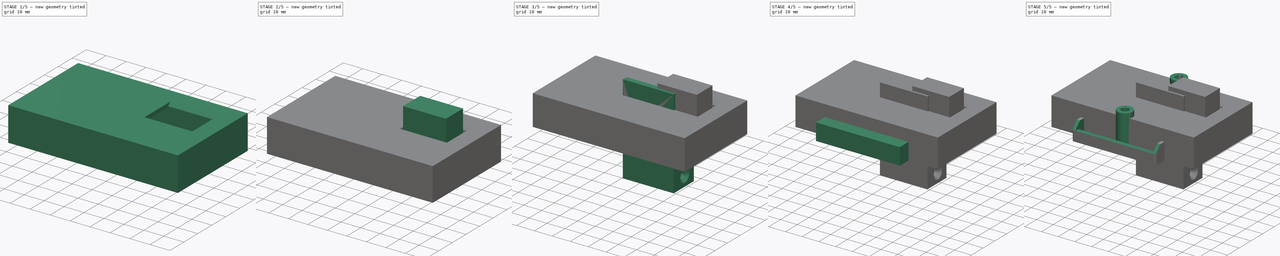
[diagram: build sequence overview — one tinted view per stage of 5, left to right]
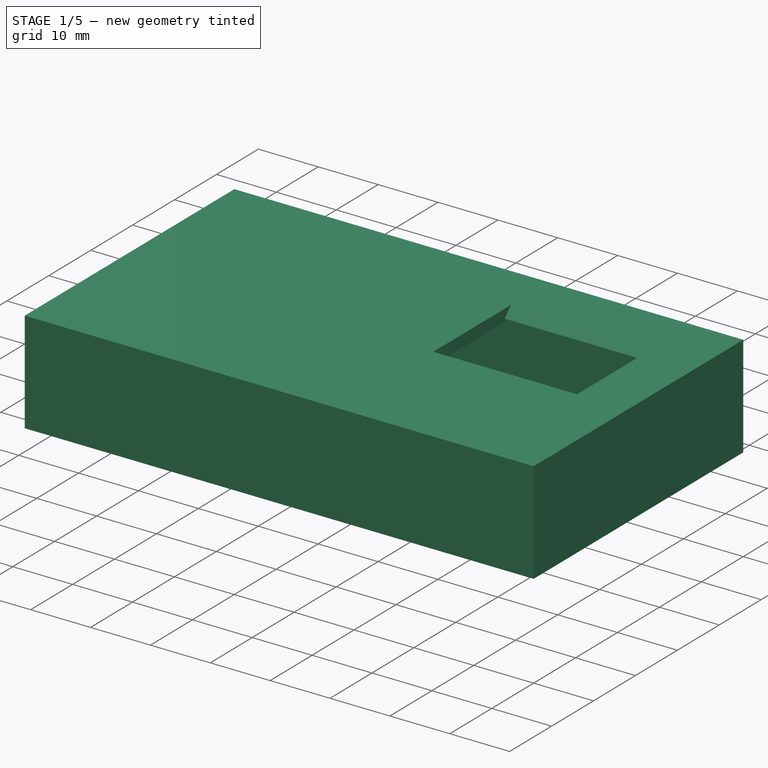
[diagram: stage 1 of 5 — iso view after this stage's code; geometry added in this stage tinted green]
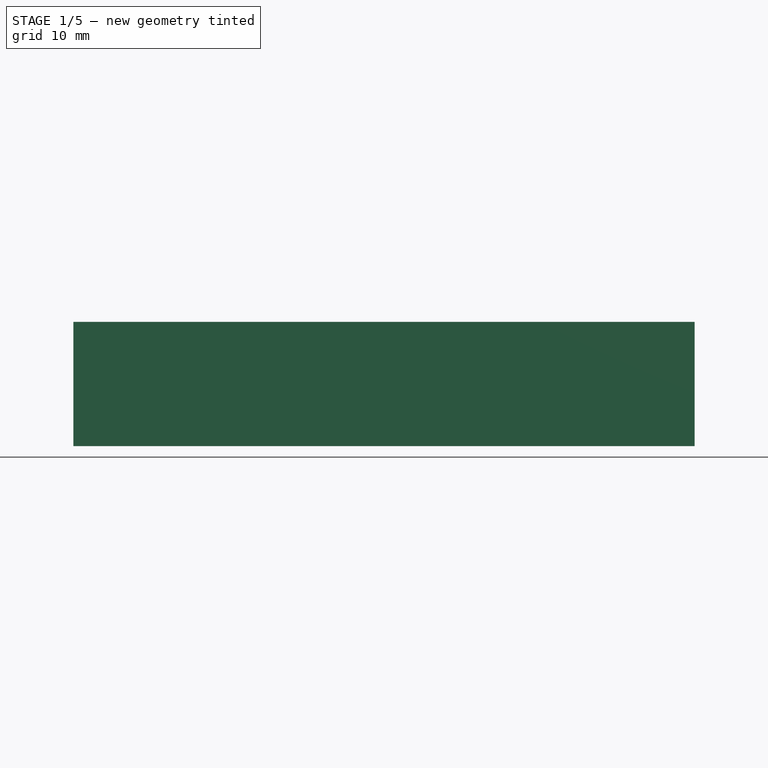
[diagram: stage 1 of 5 — front view after this stage's code; geometry added in this stage tinted green]
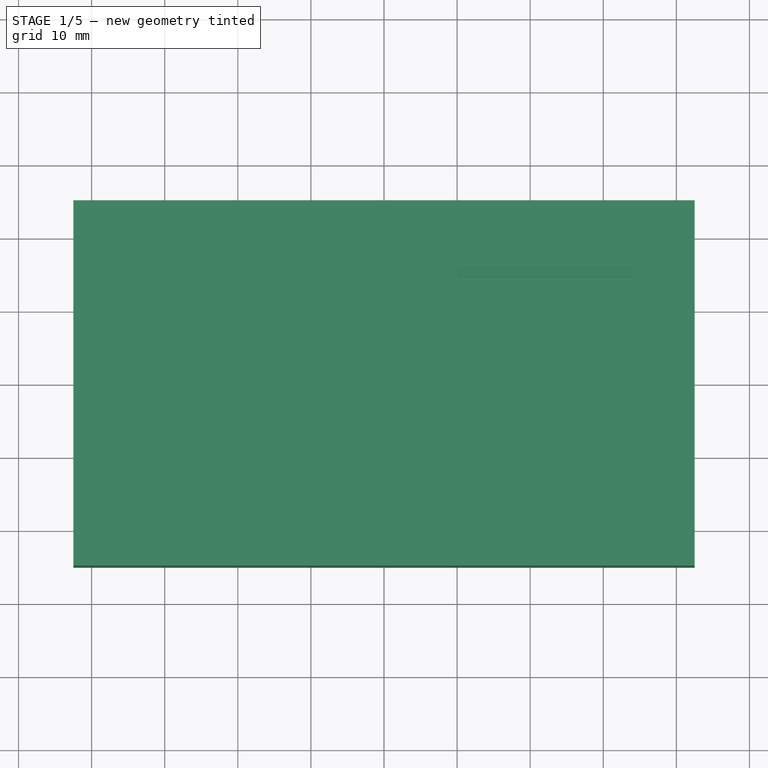
[diagram: stage 1 of 5 — top view after this stage's code; geometry added in this stage tinted green]
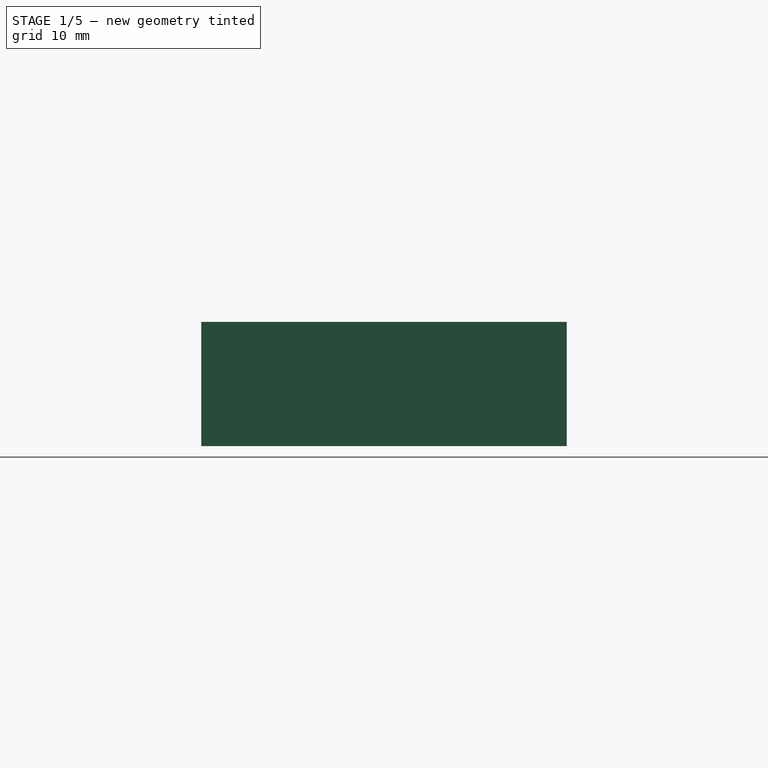
[diagram: stage 1 of 5 — right view after this stage's code; geometry added in this stage tinted green]
FCSTD DOCUMENT  (FreeCAD 0.21R33771 (Git))
Label: case
License: All rights reserved
LicenseURL: http://en.wikipedia.org/wiki/All_rights_reserved
objects: Sketcher::SketchObject×29, PartDesign::Pad×16, PartDesign::CoordinateSystem×13, PartDesign::Pocket×12, PartDesign::Mirrored×10, PartDesign::Body×6, PartDesign::SubtractiveCylinder×5, PartDesign::MultiTransform×4, App::Link×4, PartDesign::Chamfer×4, App::DocumentObjectGroup×3, Part::FeaturePython×2, App::FeaturePython×1, App::Part×1, PartDesign::Fillet×1, PartDesign::AdditiveCylinder×1
note: 142 computed .brp shape members not serialized (recipe doc carries the construction recipe); baked Part::Feature solids carry a one-line shape summary decoded from their .brp

FEATURE [PartDesign::CoordinateSystem] LCS_Origin
  AttacherType = Attacher::AttachEngine3D
  MapMode = 2
  Support = -> [X_Axis]
FEATURE [App::DocumentObjectGroup] Constraints
FEATURE [App::FeaturePython] Variables  # WARN: FeaturePython — macro-defined, semantics opaque (R4)
  Type = App::PropertyContainer
FEATURE [App::DocumentObjectGroup] Configurations
FEATURE [PartDesign::CoordinateSystem] LCS_0
  AttacherType = Attacher::AttachEngine3D
  MapMode = 2
  Support = -> [X_Axis001]
FEATURE [Sketcher::SketchObject] Sketch
  FullyConstrained = true
  MapMode = 5
  Support = -> [XY_Plane001]
  sketch-geometry (4):
    g0: LineSegment StartX=-40 StartY=22.5 StartZ=0 EndX=40 EndY=22.5 EndZ=0
    g1: LineSegment StartX=40 StartY=22.5 StartZ=0 EndX=40 EndY=-22.5 EndZ=0
    g2: LineSegment StartX=40 StartY=-22.5 StartZ=0 EndX=-40 EndY=-22.5 EndZ=0
    g3: LineSegment StartX=-40 StartY=-22.5 StartZ=0 EndX=-40 EndY=22.5 EndZ=0
  constraints (10):
    c: Coincident(g0,g1)
    c: Coincident(g1,g2)
    c: Coincident(g2,g3)
    c: Coincident(g3,g0)
    c: Horizontal(g2)
    c: Vertical(g1)
    c: DistanceX(g0,g0) = 80
    c: DistanceY(g3,g3) = 45
    c: Symmetric(g0,g2,g-1)
    c: Symmetric(g0,g0,g-2)
FEATURE [PartDesign::Pad] Pad
  Direction = (0,0,1)
  Length = 1.7
  Length2 = 10
  Profile = -> Sketch
  ReferenceAxis = -> Sketch [N_Axis]
  Type = 0
FEATURE [PartDesign::CoordinateSystem] LCS_003
  AttacherType = Attacher::AttachEngine3D
  MapMode = 2
  Support = -> [X_Axis004]
FEATURE [Sketcher::SketchObject] Sketch012
  FullyConstrained = true
  MapMode = 5
  Support = -> [XY_Plane004]
  sketch-geometry (4):
    g0: LineSegment StartX=-42.5 StartY=25 StartZ=0 EndX=42.5 EndY=25 EndZ=0
    g1: LineSegment StartX=42.5 StartY=25 StartZ=0 EndX=42.5 EndY=-25 EndZ=0
    g2: LineSegment StartX=42.5 StartY=-25 StartZ=0 EndX=-42.5 EndY=-25 EndZ=0
    g3: LineSegment StartX=-42.5 StartY=-25 StartZ=0 EndX=-42.5 EndY=25 EndZ=0
  constraints (10):
    c: Horizontal(g0)
    c: Vertical(g1)
    c: Coincident(g2,g1)
    c: Coincident(g3,g2)
    c: Coincident(g0,g3)
    c: DistanceX(g2,g2) = 85
    c: DistanceY(g3,g3) = 50
    c: Symmetric(g1,g2,g-2)
    c: Symmetric(g0,g2,g-1)
    c: Coincident(g1,g0)
FEATURE [PartDesign::CoordinateSystem] Local_CS006  label="TopMount"
  AttacherType = Attacher::AttachEngine3D
  AttachmentOffset = pos=(0,0,6.5) rot=(0,0,1;0rad)
  MapMode = 5
  Placement = pos=(0,0,6.5) rot=(0,0,1;0rad)
  Support = -> [LCS_002]
FEATURE [App::Link] Top001
  AssemblyType = Part::Link
  AttachedBy = #LCS_003
  AttachedTo = Base001#Local_CS006
  LinkPlacement = pos=(0,0,6.5) rot=(0,0,1;0rad)
  LinkedObject = -> Top
  Placement = pos=(0,0,6.5) rot=(0,0,1;0rad)
  SolverId = Asm4EE
  expr: Placement = Base001.Placement * Local_CS006.Placement * AttachmentOffset * LCS_003.Placement ^ -1
FEATURE [PartDesign::Pad] Pad009
  Direction = (0,0,1)
  Length = 17
  Length2 = 10
  Profile = -> Sketch012
  ReferenceAxis = -> Sketch012 [N_Axis]
  Type = 0
FEATURE [Sketcher::SketchObject] Sketch013
  FullyConstrained = false
  MapMode = 5
  Support = -> [XY_Plane004]
  sketch-geometry (4):
    g0: LineSegment StartX=-46.463 StartY=15 StartZ=0 EndX=-31.5928 EndY=15 EndZ=0
    g1: LineSegment StartX=-31.5928 StartY=15 StartZ=0 EndX=-31.5928 EndY=-16.25 EndZ=0
    g2: LineSegment StartX=-31.5928 StartY=-16.25 StartZ=0 EndX=-46.463 EndY=-16.25 EndZ=0
    g3: LineSegment StartX=-46.463 StartY=-16.25 StartZ=0 EndX=-46.463 EndY=15 EndZ=0
  constraints (9):
    c: Coincident(g0,g1)
    c: Coincident(g1,g2)
    c: Coincident(g2,g3)
    c: Horizontal(g0)
    c: Horizontal(g2)
    c: Vertical(g1)
    c: DistanceY(g-1,g0) = 15
    c: DistanceY(g2,g-1) = 16.25
    c: Coincident(g3,g0)
FEATURE [PartDesign::Pocket] Pocket002
  BaseFeature = -> Pad009
  Direction = (0,0,-1)
  Length = 11
  Length2 = 5
  Profile = -> Sketch013
  ReferenceAxis = -> Sketch013 [N_Axis]
  Reversed = true
  Type = 0
FEATURE [Sketcher::SketchObject] Sketch014
  FullyConstrained = false
  MapMode = 5
  Support = -> [XY_Plane004]
  sketch-geometry (8):
    g0: LineSegment StartX=-33.4749 StartY=23.25 StartZ=0 EndX=34 EndY=23.25 EndZ=0
    g1: LineSegment StartX=34 StartY=-23.25 StartZ=0 EndX=-33.4749 EndY=-23.25 EndZ=0
    g2: LineSegment StartX=-33.4749 StartY=-23.25 StartZ=0 EndX=-33.4749 EndY=23.25 EndZ=0
    g3: LineSegment StartX=34 StartY=-23.25 StartZ=0 EndX=34 EndY=-16 EndZ=0
    g4: LineSegment StartX=34 StartY=-16 StartZ=0 EndX=40.75 EndY=-16 EndZ=0
    g5: LineSegment StartX=40.75 StartY=-16 StartZ=0 EndX=40.75 EndY=16 EndZ=0
    g6: LineSegment StartX=40.75 StartY=16 StartZ=0 EndX=34 EndY=16 EndZ=0
    g7: LineSegment StartX=34 StartY=16 StartZ=0 EndX=34 EndY=23.25 EndZ=0
  constraints (22):
    c: Coincident(g1,g2)
    c: Coincident(g2,g0)
    c: Horizontal(g0)
    c: Horizontal(g1)
    c: Vertical(g2)
    c: Coincident(g3,g1)
    c: Coincident(g4,g3)
    c: Horizontal(g4)
    c: Coincident(g5,g4)
    c: Coincident(g6,g5)
    c: Horizontal(g6)
    c: Coincident(g7,g6)
    c: Coincident(g7,g0)
    c: DistanceY(g2,g2) = 46.5
    c: DistanceX(g4,g4) = 6.75
    c: Vertical(g1,g3)
    c: Vertical(g3,g6)
    c: Vertical(g6,g0)
    c: DistanceY(g7,g7) = 7.25
    c: DistanceY(g3,g3) = 7.25
    c: Symmetric(g5,g4,g-1)
    c: DistanceX(g-1,g3) = 34
FEATURE [PartDesign::Pocket] Pocket003
  BaseFeature = -> Pocket002
  Direction = (0,0,-1)
  Length = 15
  Length2 = 5
  Profile = -> Sketch014
  ReferenceAxis = -> Sketch014 [N_Axis]
  Reversed = true
  Type = 0
FEATURE [Sketcher::SketchObject] Sketch018
  FullyConstrained = true
  MapMode = 5
  Support = -> [XY_Plane004]
  sketch-geometry (4):
    g0: LineSegment StartX=-30.5 StartY=-4.5 StartZ=0 EndX=-9 EndY=-4.5 EndZ=0
    g1: LineSegment StartX=-9 StartY=-4.5 StartZ=0 EndX=-9 EndY=-21.5 EndZ=0
    g2: LineSegment StartX=-9 StartY=-21.5 StartZ=0 EndX=-30.5 EndY=-21.5 EndZ=0
    g3: LineSegment StartX=-30.5 StartY=-21.5 StartZ=0 EndX=-30.5 EndY=-4.5 EndZ=0
  constraints (12):
    c: Coincident(g0,g1)
    c: Coincident(g1,g2)
    c: Coincident(g2,g3)
    c: Coincident(g3,g0)
    c: Horizontal(g0)
    c: Horizontal(g2)
    c: Vertical(g1)
    c: Vertical(g3)
    c: DistanceX(g0,g-1) = 9
    c: DistanceX(g0,g0) = 21.5
    c: DistanceY(g1,g1) = 17
    c: DistanceY(g0,g-1) = 4.5
FEATURE [PartDesign::Pocket] Pocket007
  BaseFeature = -> Pocket003
  Direction = (0,0,-1)
  Length = 16
  Length2 = 5
  Profile = -> Sketch018
  ReferenceAxis = -> Sketch018 [N_Axis]
  Reversed = true
  Type = 0
FEATURE [PartDesign::SubtractiveCylinder] Cylinder002
  Angle = 360
  AttacherType = Attacher::AttachEngine3D
  AttachmentOffset = pos=(-37,19.5,0) rot=(0,0,1;0rad)
  BaseFeature = -> Pocket007
  FirstAngle = 0
  Height = 12
  MapMode = 5
  Placement = pos=(-37,19.5,0) rot=(0,0,1;0rad)
  Radius = 2.25
  SecondAngle = 0
  Support = -> [XY_Plane004]
  expr: Radius = 4.5 / 2
FEATURE [PartDesign::MultiTransform] MultiTransform004
  BaseFeature = -> Cylinder002
  Originals = -> [Cylinder002]
  Placement = pos=(-37,19.5,0) rot=(0,0,1;0rad)
  Transformations = -> [Mirrored009,Mirrored010]
FEATURE [PartDesign::Body] Mainboard
  Group = -> [LCS_0,Sketch,Pad,Sketch001,Pad001,Sketch002,Pad002,Sketch003,Pad003,Cylinder,MultiTransform,Mirrored,Mirrored001,Local_CS001,Local_CS003,Sketch034,Pad017,Local_CS009,Sketch035,Pad018]
  Origin = -> Origin001
  Tip = -> Pad018
FEATURE [Sketcher::SketchObject] Sketch036
  FullyConstrained = true
  MapMode = 5
  Support = -> [XY_Plane004]
FEATURE [Sketcher::SketchObject] Sketch037
  FullyConstrained = true
  MapMode = 5
  Support = -> [XY_Plane004]
  sketch-geometry (4):
    g0: LineSegment StartX=10 StartY=14.5 StartZ=0 EndX=34 EndY=14.5 EndZ=0
    g1: LineSegment StartX=34 StartY=14.5 StartZ=0 EndX=34 EndY=-2.5 EndZ=0
    g2: LineSegment StartX=34 StartY=-2.5 StartZ=0 EndX=10 EndY=-2.5 EndZ=0
    g3: LineSegment StartX=10 StartY=-2.5 StartZ=0 EndX=10 EndY=14.5 EndZ=0
  constraints (12):
    c: Coincident(g0,g1)
    c: Coincident(g1,g2)
    c: Coincident(g2,g3)
    c: Coincident(g3,g0)
    c: Horizontal(g0)
    c: Horizontal(g2)
    c: Vertical(g1)
    c: Vertical(g3)
    c: DistanceX(g0,g0) = 24
    c: DistanceY(g3,g3) = 17
    c: DistanceX(g-1,g0) = 10
    c: DistanceY(g2,g-1) = 2.5
FEATURE [PartDesign::Pocket] Pocket014
  BaseFeature = -> MultiTransform004
  Direction = (0,0,-1)
  Length = 5
  Length2 = 5
  Placement = pos=(-37,19.5,0) rot=(0,0,1;0rad)
  Profile = -> Sketch037
  ReferenceAxis = -> Sketch037 [N_Axis]
  Reversed = true
  Type = 1
FEATURE [PartDesign::Chamfer] Chamfer003
  Angle = 45
  Base = -> Pocket014 [Edge32]
  BaseFeature = -> Pocket014
  ChamferType = 0
  FlipDirection = false
  Placement = pos=(-37,19.5,0) rot=(0,0,1;0rad)
  Size = 1.5
  Size2 = 1
  SupportTransform = false
  UseAllEdges = false
FEATURE [PartDesign::Body] Top
  Group = -> [LCS_003,Sketch012,Pad009,Sketch013,Pocket002,Sketch014,Pocket003,Sketch018,Pocket007,Cylinder002,MultiTransform004,Mirrored009,Mirrored010,Sketch036,Sketch037,Pocket014,Chamfer003]
  Origin = -> Origin004
  Tip = -> Chamfer003
FEATURE [App::DocumentObjectGroup] Parts
  Group = -> [Mainboard,Base,Top,screw,SSR_Cover,Washer]
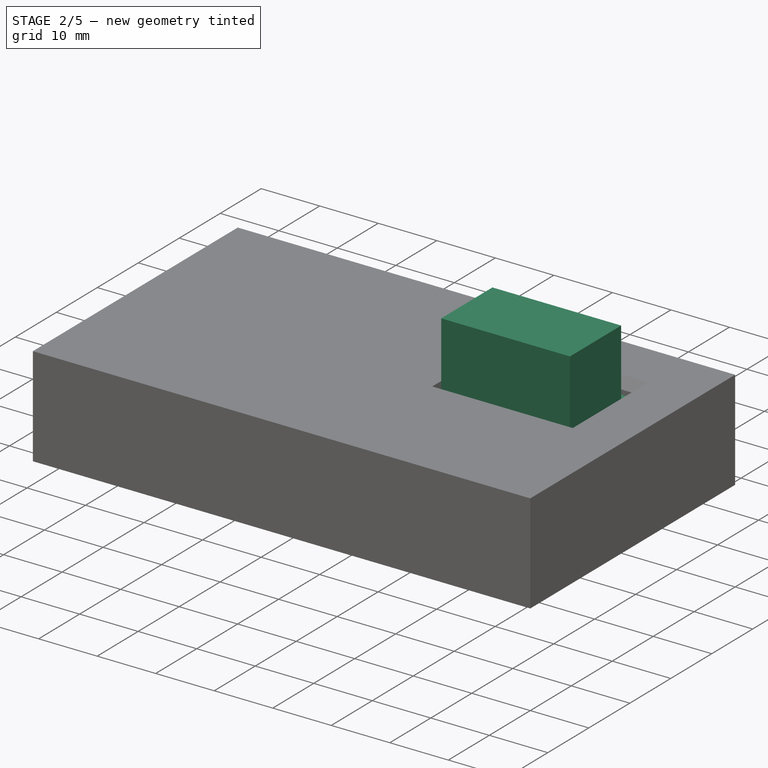
[diagram: stage 2 of 5 — iso view after this stage's code; geometry added in this stage tinted green]
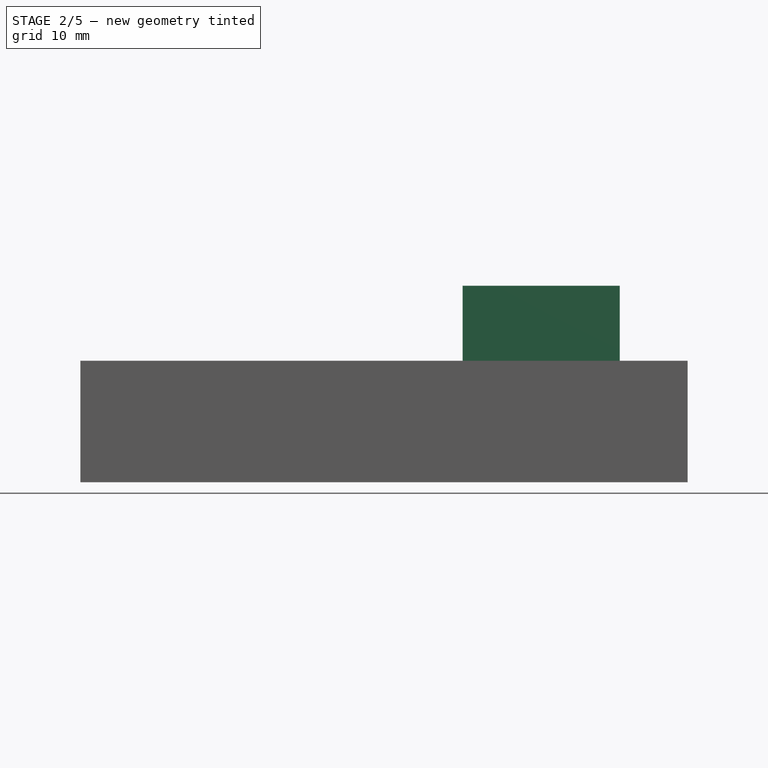
[diagram: stage 2 of 5 — front view after this stage's code; geometry added in this stage tinted green]
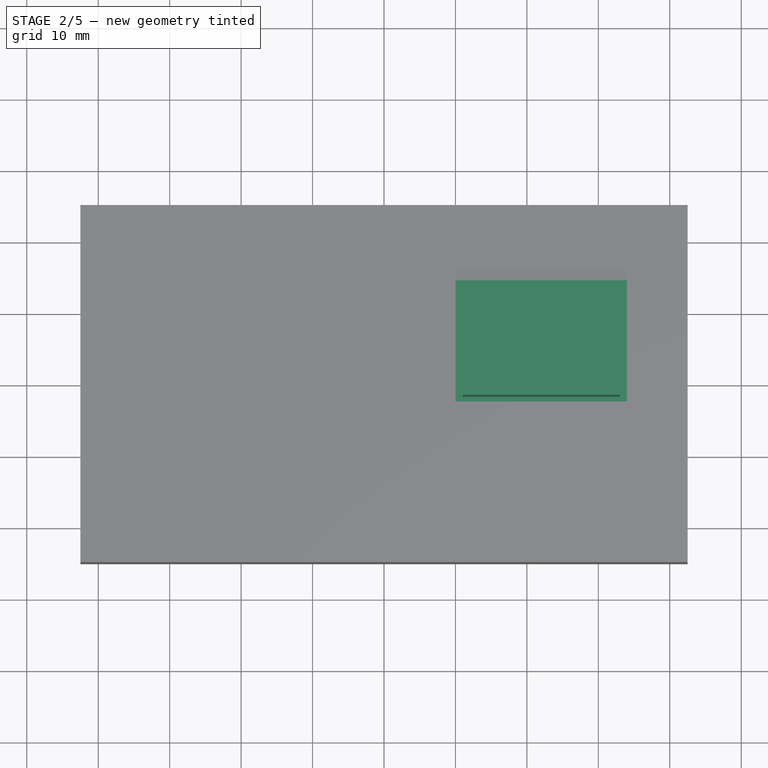
[diagram: stage 2 of 5 — top view after this stage's code; geometry added in this stage tinted green]
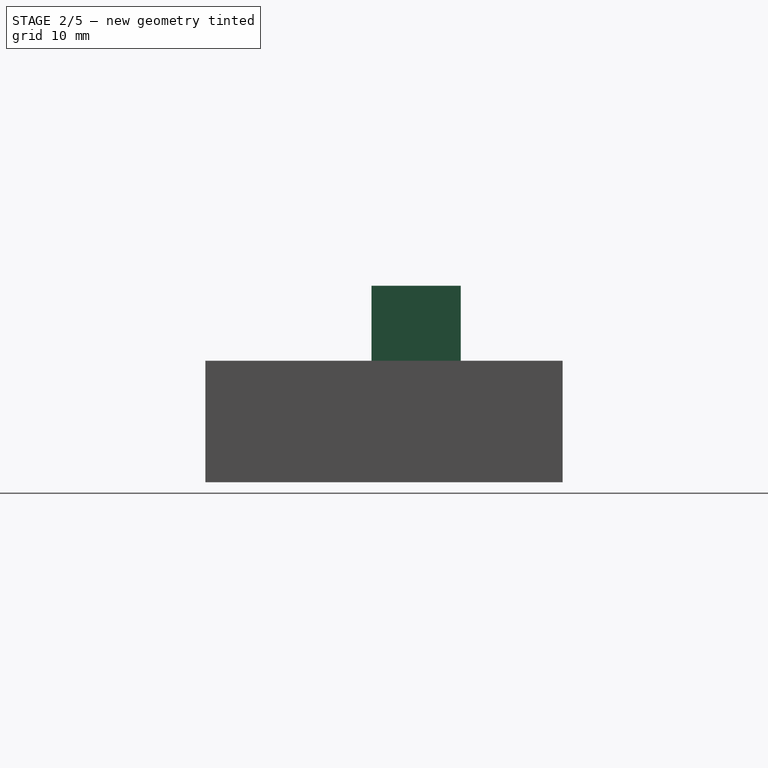
[diagram: stage 2 of 5 — right view after this stage's code; geometry added in this stage tinted green]
FEATURE [Sketcher::SketchObject] Sketch001
  FullyConstrained = true
  MapMode = 5
  Support = -> [XY_Plane001]
  expr: Constraints[11] = 45 / 2 - 8.4
  sketch-geometry (4):
    g0: LineSegment StartX=-40 StartY=14.1 StartZ=0 EndX=-33.5 EndY=14.1 EndZ=0
    g1: LineSegment StartX=-33.5 StartY=14.1 StartZ=0 EndX=-33.5 EndY=3.1 EndZ=0
    g2: LineSegment StartX=-33.5 StartY=3.1 StartZ=0 EndX=-40 EndY=3.1 EndZ=0
    g3: LineSegment StartX=-40 StartY=3.1 StartZ=0 EndX=-40 EndY=14.1 EndZ=0
  constraints (12):
    c: Coincident(g0,g1)
    c: Coincident(g1,g2)
    c: Coincident(g2,g3)
    c: Coincident(g3,g0)
    c: Horizontal(g0)
    c: Horizontal(g2)
    c: Vertical(g1)
    c: Vertical(g3)
    c: DistanceY(g1,g1) = 11
    c: DistanceX(g0,g0) = 6.5
    c: DistanceX(g0,g-1) = 40
    c: DistanceY(g-1,g0) = 14.1
FEATURE [PartDesign::Pad] Pad001
  BaseFeature = -> Pad
  Direction = (0,0,1)
  Length = 11.5
  Length2 = 10
  Profile = -> Sketch001
  ReferenceAxis = -> Sketch001 [N_Axis]
  Type = 0
FEATURE [Sketcher::SketchObject] Sketch002
  FullyConstrained = true
  MapMode = 5
  Support = -> [XY_Plane001]
  expr: Constraints[11] = 45 / 2 - 6.5
  sketch-geometry (4):
    g0: LineSegment StartX=-40 StartY=-1 StartZ=0 EndX=-33.5 EndY=-1 EndZ=0
    g1: LineSegment StartX=-33.5 StartY=-1 StartZ=0 EndX=-33.5 EndY=-16 EndZ=0
    g2: LineSegment StartX=-33.5 StartY=-16 StartZ=0 EndX=-40 EndY=-16 EndZ=0
    g3: LineSegment StartX=-40 StartY=-16 StartZ=0 EndX=-40 EndY=-1 EndZ=0
  constraints (12):
    c: Coincident(g0,g1)
    c: Coincident(g1,g2)
    c: Coincident(g2,g3)
    c: Coincident(g3,g0)
    c: Horizontal(g0)
    c: Horizontal(g2)
    c: Vertical(g1)
    c: Vertical(g3)
    c: DistanceX(g0,g0) = 6.5
    c: DistanceY(g3,g3) = 15
    c: DistanceX(g0,g-1) = 40
    c: DistanceY(g2,g-1) = 16
FEATURE [PartDesign::Pad] Pad002
  BaseFeature = -> Pad001
  Direction = (0,0,1)
  Length = 11.5
  Length2 = 10
  Profile = -> Sketch002
  ReferenceAxis = -> Sketch002 [N_Axis]
  Type = 0
FEATURE [Sketcher::SketchObject] Sketch003
  FullyConstrained = true
  MapMode = 5
  Support = -> [XY_Plane001]
  expr: Constraints[10] = 40 - 11
  expr: Constraints[11] = 45 / 2 - 2
  sketch-geometry (4):
    g0: LineSegment StartX=-29 StartY=-5.5 StartZ=0 EndX=-10.5 EndY=-5.5 EndZ=0
    g1: LineSegment StartX=-10.5 StartY=-5.5 StartZ=0 EndX=-10.5 EndY=-20.5 EndZ=0
    g2: LineSegment StartX=-10.5 StartY=-20.5 StartZ=0 EndX=-29 EndY=-20.5 EndZ=0
    g3: LineSegment StartX=-29 StartY=-20.5 StartZ=0 EndX=-29 EndY=-5.5 EndZ=0
  constraints (12):
    c: Coincident(g0,g1)
    c: Coincident(g1,g2)
    c: Coincident(g2,g3)
    c: Coincident(g3,g0)
    c: Horizontal(g0)
    c: Horizontal(g2)
    c: Vertical(g1)
    c: Vertical(g3)
    c: DistanceX(g0,g0) = 18.5
    c: DistanceY(g3,g3) = 15
    c: DistanceX(g2,g-1) = 29
    c: DistanceY(g2,g-1) = 20.5
FEATURE [PartDesign::Pad] Pad003
  BaseFeature = -> Pad002
  Direction = (0,0,1)
  Length = 16.8
  Length2 = 10
  Profile = -> Sketch003
  ReferenceAxis = -> Sketch003 [N_Axis]
  Type = 0
FEATURE [PartDesign::SubtractiveCylinder] Cylinder
  Angle = 360
  AttacherType = Attacher::AttachEngine3D
  AttachmentOffset = pos=(37,19.5,0) rot=(0,0,1;0rad)
  BaseFeature = -> Pad003
  FirstAngle = 0
  Height = 10
  MapMode = 5
  Placement = pos=(37,19.5,0) rot=(0,0,1;0rad)
  Radius = 1.5
  SecondAngle = 0
  Support = -> [XY_Plane001]
  expr: .AttachmentOffset.Base.x = 40 - 3
  expr: .AttachmentOffset.Base.y = 45 / 2 - 3
FEATURE [PartDesign::Mirrored] Mirrored
  MirrorPlane = -> YZ_Plane001
  Placement = pos=(37,19.5,0) rot=(0,0,1;0rad)
FEATURE [PartDesign::Mirrored] Mirrored001
  MirrorPlane = -> XZ_Plane001
  Placement = pos=(37,19.5,0) rot=(0,0,1;0rad)
FEATURE [PartDesign::MultiTransform] MultiTransform
  BaseFeature = -> Cylinder
  Originals = -> [Cylinder]
  Placement = pos=(37,19.5,0) rot=(0,0,1;0rad)
  Transformations = -> [Mirrored,Mirrored001]
FEATURE [PartDesign::Body] screw
  Group = -> [LCS_004,Sketch020,Pad010,Sketch021,Sketch022,Pad011,Pad012,Sketch023,Pad013,Sketch024,Pad014,Cylinder003,Mirrored011,Chamfer001]
  Origin = -> Origin005
  Tip = -> Chamfer001
FEATURE [PartDesign::CoordinateSystem] LCS_006
  AttacherType = Attacher::AttachEngine3D
  MapMode = 2
  Support = -> [X_Axis007]
FEATURE [Sketcher::SketchObject] Sketch030
  FullyConstrained = true
  MapMode = 5
  Support = -> [XY_Plane007]
  sketch-geometry (1):
    g0: Circle CenterX=0 CenterY=0 CenterZ=0 NormalX=0 NormalY=0 NormalZ=1 AngleXU=0 Radius=10
  constraints (2):
    c: Coincident(g0,g-1)
    c: Diameter(g0) = 20
FEATURE [PartDesign::Pad] Pad016
  Direction = (0,0,1)
  Length = 2
  Length2 = 10
  Profile = -> Sketch030
  ReferenceAxis = -> Sketch030 [N_Axis]
  Type = 0
FEATURE [Sketcher::SketchObject] Sketch031
  FullyConstrained = true
  MapMode = 5
  Support = -> [XY_Plane007]
  sketch-geometry (1):
    g0: Circle CenterX=0 CenterY=0 CenterZ=0 NormalX=0 NormalY=0 NormalZ=1 AngleXU=0 Radius=5.5
  constraints (2):
    c: Coincident(g0,g-1)
    c: Diameter(g0) = 11
FEATURE [PartDesign::Pocket] Pocket011
  BaseFeature = -> Pad016
  Direction = (0,0,-1)
  Length = 5
  Length2 = 5
  Profile = -> Sketch031
  ReferenceAxis = -> Sketch031 [N_Axis]
  Reversed = true
  Type = 1
FEATURE [Sketcher::SketchObject] Sketch032
  FullyConstrained = true
  MapMode = 5
  Support = -> [XY_Plane007]
  sketch-geometry (4):
    g0: LineSegment StartX=-1.3 StartY=8 StartZ=0 EndX=1.3 EndY=8 EndZ=0
    g1: LineSegment StartX=1.3 StartY=8 StartZ=0 EndX=1.3 EndY=-8 EndZ=0
    g2: LineSegment StartX=1.3 StartY=-8 StartZ=0 EndX=-1.3 EndY=-8 EndZ=0
    g3: LineSegment StartX=-1.3 StartY=-8 StartZ=0 EndX=-1.3 EndY=8 EndZ=0
  constraints (10):
    c: Coincident(g0,g1)
    c: Coincident(g1,g2)
    c: Coincident(g2,g3)
    c: Coincident(g3,g0)
    c: Horizontal(g2)
    c: Vertical(g1)
    c: DistanceX(g0,g0) = 2.6
    c: DistanceY(g1,g1) = 16
    c: Symmetric(g0,g2,g-1)
    c: Symmetric(g0,g0,g-2)
FEATURE [PartDesign::Pocket] Pocket012
  BaseFeature = -> Pocket011
  Direction = (0,0,-1)
  Length = 5
  Length2 = 5
  Profile = -> Sketch032
  ReferenceAxis = -> Sketch032 [N_Axis]
  Reversed = true
  Type = 1
FEATURE [PartDesign::Body] Washer
  Group = -> [LCS_006,Sketch030,Pad016,Sketch031,Pocket011,Sketch032,Pocket012,Sketch033,Pocket013]
  Origin = -> Origin007
  Tip = -> Pocket013
FEATURE [Sketcher::SketchObject] Sketch034
  FullyConstrained = true
  MapMode = 5
  Support = -> [XY_Plane001]
  sketch-geometry (4):
    g0: LineSegment StartX=6 StartY=19.25 StartZ=0 EndX=34 EndY=19.25 EndZ=0
    g1: LineSegment StartX=34 StartY=19.25 StartZ=0 EndX=34 EndY=-19.25 EndZ=0
    g2: LineSegment StartX=34 StartY=-19.25 StartZ=0 EndX=6 EndY=-19.25 EndZ=0
    g3: LineSegment StartX=6 StartY=-19.25 StartZ=0 EndX=6 EndY=19.25 EndZ=0
  constraints (11):
    c: Coincident(g0,g1)
    c: Coincident(g1,g2)
    c: Coincident(g2,g3)
    c: Coincident(g3,g0)
    c: Horizontal(g0)
    c: Horizontal(g2)
    c: Vertical(g1)
    c: DistanceX(g0,g0) = 28
    c: DistanceY(g1,g1) = 38.5
    c: Symmetric(g0,g2,g-1)
    c: DistanceX(g-1,g0) = 34
FEATURE [PartDesign::Pad] Pad017
  BaseFeature = -> MultiTransform
  Direction = (0,0,1)
  Length = 12
  Length2 = 10
  Placement = pos=(37,19.5,0) rot=(0,0,1;0rad)
  Profile = -> Sketch034
  ReferenceAxis = -> Sketch034 [N_Axis]
  Type = 0
FEATURE [PartDesign::CoordinateSystem] Local_CS009
  AttacherType = Attacher::AttachEngine3D
  AttachmentOffset = pos=(14.75,0,-16) rot=(0,0,1;0rad)
  MapMode = 7
  Placement = pos=(22,4.5,12) rot=(0.57735,-0.57735,-0.57735;2.0944rad)
  Support = -> [Pad017]
  expr: .AttachmentOffset.Base.x = 8.5 + 12.5 / 2
  expr: .AttachmentOffset.Base.z = -5 - 22 / 2
FEATURE [Sketcher::SketchObject] Sketch035
  AttachmentOffset = pos=(0,0,0) rot=(0,0,1;1.5708rad)
  FullyConstrained = true
  MapMode = 3
  Placement = pos=(22,4.5,12) rot=(0,-1,0;3.14159rad)
  Support = -> [Local_CS009]
  sketch-geometry (4):
    g0: LineSegment StartX=-11 StartY=6.25 StartZ=0 EndX=11 EndY=6.25 EndZ=0
    g1: LineSegment StartX=11 StartY=6.25 StartZ=0 EndX=11 EndY=-6.25 EndZ=0
    g2: LineSegment StartX=11 StartY=-6.25 StartZ=0 EndX=-11 EndY=-6.25 EndZ=0
    g3: LineSegment StartX=-11 StartY=-6.25 StartZ=0 EndX=-11 EndY=6.25 EndZ=0
  constraints (10):
    c: Coincident(g0,g1)
    c: Coincident(g1,g2)
    c: Coincident(g2,g3)
    c: Coincident(g3,g0)
    c: Horizontal(g2)
    c: Vertical(g1)
    c: DistanceX(g0,g0) = 22
    c: DistanceY(g3,g3) = 12.5
    c: Symmetric(g2,g0,g-1)
    c: Symmetric(g0,g0,g-2)
FEATURE [PartDesign::Pad] Pad018
  BaseFeature = -> Pad017
  Direction = (0,0,-1)
  Length = 15.5
  Length2 = 10
  Placement = pos=(37,19.5,0) rot=(0,0,1;0rad)
  Profile = -> Sketch035
  ReferenceAxis = -> Sketch035 [N_Axis]
  Reversed = true
  Type = 0
  expr: Length = 15.5
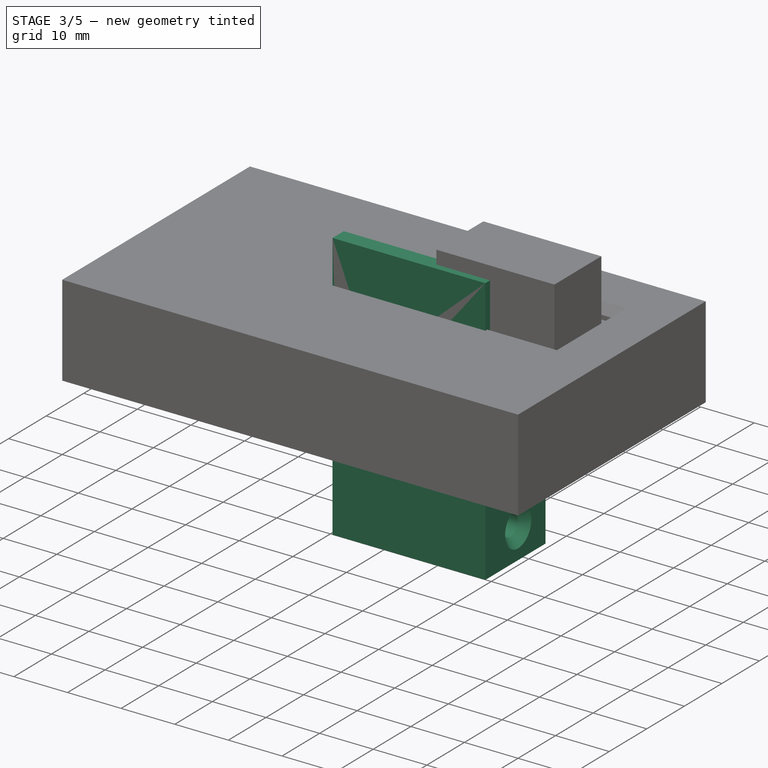
[diagram: stage 3 of 5 — iso view after this stage's code; geometry added in this stage tinted green]
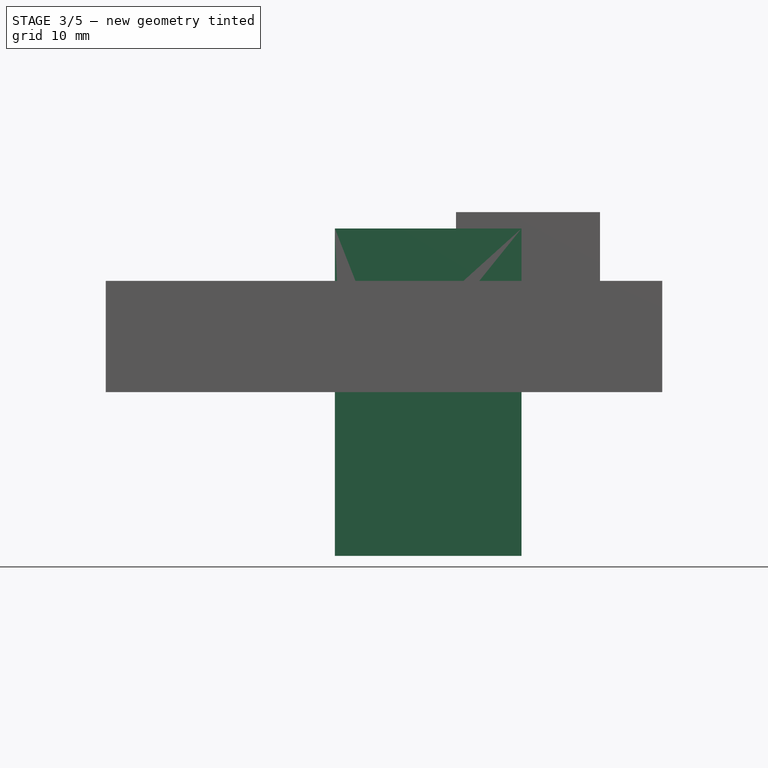
[diagram: stage 3 of 5 — front view after this stage's code; geometry added in this stage tinted green]
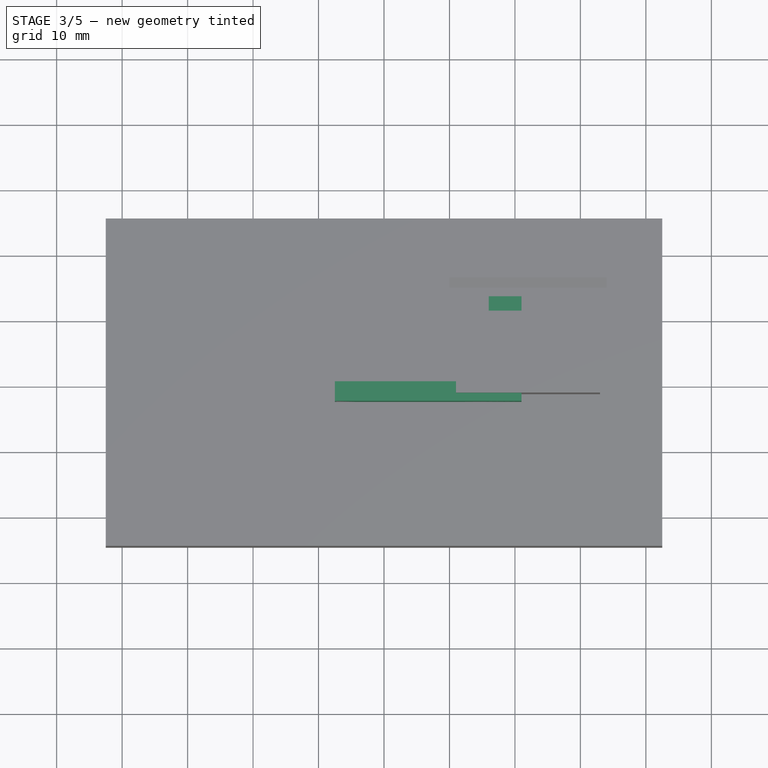
[diagram: stage 3 of 5 — top view after this stage's code; geometry added in this stage tinted green]
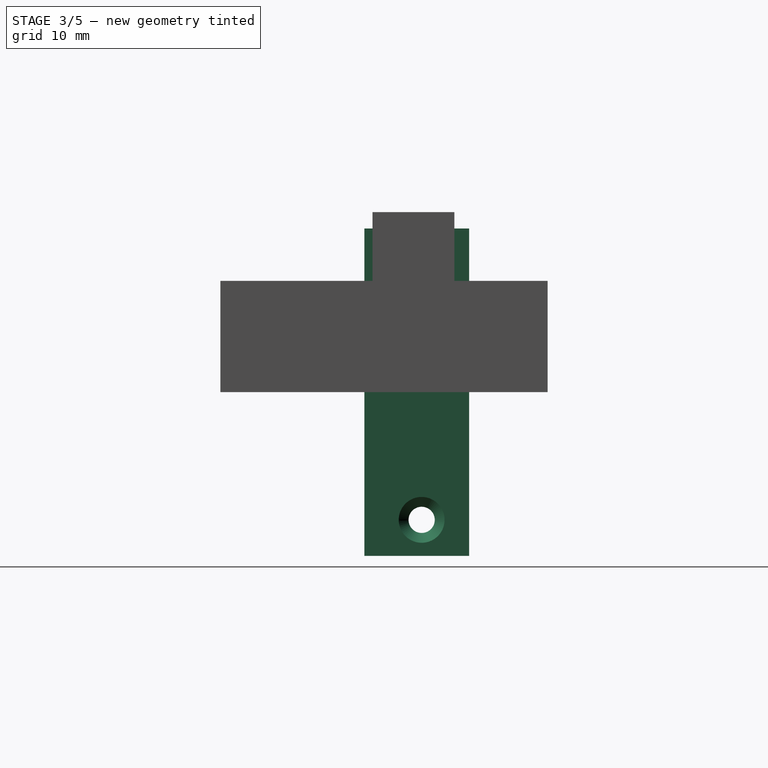
[diagram: stage 3 of 5 — right view after this stage's code; geometry added in this stage tinted green]
FEATURE [PartDesign::CoordinateSystem] LCS_004
  AttacherType = Attacher::AttachEngine3D
  MapMode = 2
  Support = -> [X_Axis005]
FEATURE [Sketcher::SketchObject] Sketch020
  AttachmentOffset = pos=(0,0,3) rot=(0,0,1;0rad)
  FullyConstrained = true
  MapMode = 5
  Placement = pos=(0,-3,-7e-16) rot=(1,0,0;1.5708rad)
  Support = -> [XZ_Plane005]
  sketch-geometry (4):
    g0: LineSegment StartX=-1.15 StartY=3 StartZ=0 EndX=1.15 EndY=3 EndZ=0
    g1: LineSegment StartX=1.15 StartY=3 StartZ=0 EndX=1.15 EndY=17 EndZ=0
    g2: LineSegment StartX=1.15 StartY=17 StartZ=0 EndX=-1.15 EndY=17 EndZ=0
    g3: LineSegment StartX=-1.15 StartY=17 StartZ=0 EndX=-1.15 EndY=3 EndZ=0
  constraints (11):
    c: Coincident(g0,g1)
    c: Coincident(g1,g2)
    c: Coincident(g2,g3)
    c: Coincident(g3,g0)
    c: Horizontal(g2)
    c: Vertical(g1)
    c: DistanceY(g1,g1) = -14
    c: DistanceX(g0,g0) = 2.3
    c: Symmetric(g0,g0,g-2)
    c: DistanceY(g-1,g0) = 3
    c: Vertical(g3)
FEATURE [PartDesign::Pad] Pad010
  Direction = (0,-1,-2e-16)
  Length = 3
  Length2 = 10
  Placement = pos=(0,0,0) rot=(1,0,0;1.5708rad)
  Profile = -> Sketch020
  ReferenceAxis = -> Sketch020 [N_Axis]
  Type = 0
FEATURE [Sketcher::SketchObject] Sketch021
  AttachmentOffset = pos=(0,0,3) rot=(0,0,1;0rad)
  FullyConstrained = true
  MapMode = 5
  Placement = pos=(0,-3,-7e-16) rot=(1,0,0;1.5708rad)
  Support = -> [XZ_Plane005]
  expr: Constraints[9] = -1 * (2.38 - 10) + 4.75
  sketch-geometry (4):
    g0: LineSegment StartX=-7 StartY=12.37 StartZ=0 EndX=7 EndY=12.37 EndZ=0
    g1: LineSegment StartX=7 StartY=12.37 StartZ=0 EndX=7 EndY=7.62 EndZ=0
    g2: LineSegment StartX=7 StartY=7.62 StartZ=0 EndX=-7 EndY=7.62 EndZ=0
    g3: LineSegment StartX=-7 StartY=7.62 StartZ=0 EndX=-7 EndY=12.37 EndZ=0
  constraints (11):
    c: Coincident(g0,g1)
    c: Coincident(g1,g2)
    c: Coincident(g2,g3)
    c: Coincident(g3,g0)
    c: Horizontal(g2)
    c: Vertical(g1)
    c: DistanceY(g1,g1) = 4.75
    c: DistanceX(g0,g0) = 14
    c: Symmetric(g0,g0,g-2)
    c: DistanceY(g-1,g0) = 12.37
    c: Vertical(g3)
FEATURE [Sketcher::SketchObject] Sketch022
  AttachmentOffset = pos=(0,0,3) rot=(0,0,1;0rad)
  FullyConstrained = true
  MapMode = 5
  Placement = pos=(0,-3,-7e-16) rot=(1,0,0;1.5708rad)
  Support = -> [XZ_Plane005]
  expr: Constraints[2] = 10 mm
  sketch-geometry (1):
    g0: Circle CenterX=0 CenterY=10 CenterZ=0 NormalX=0 NormalY=0 NormalZ=1 AngleXU=0 Radius=5
  constraints (3):
    c: Diameter(g0) = 10
    c: DistanceX(g-1,g0) = 0
    c: DistanceY(g-1,g0) = 10
FEATURE [PartDesign::Pad] Pad011
  BaseFeature = -> Pad010
  Direction = (0,-1,-2e-16)
  Length = 3
  Length2 = 10
  Placement = pos=(0,0,0) rot=(1,0,0;1.5708rad)
  Profile = -> Sketch021
  ReferenceAxis = -> Sketch021 [N_Axis]
  Type = 0
FEATURE [PartDesign::Pad] Pad012
  BaseFeature = -> Pad011
  Direction = (0,-1,-2e-16)
  Length = 2
  Length2 = 10
  Placement = pos=(0,0,0) rot=(1,0,0;1.5708rad)
  Profile = -> Sketch022
  ReferenceAxis = -> Sketch022 [N_Axis]
  Type = 0
FEATURE [App::Link] screw001
  AssemblyType = Part::Link
  AttachedBy = #LCS_004
  AttachedTo = Base001#Local_CS008
  AttachmentOffset = pos=(0,0,0) rot=(0,0,1;4.71239rad)
  LinkPlacement = pos=(43.5,4e-16,2) rot=(0.57735,-0.57735,-0.57735;4.18879rad)
  LinkedObject = -> screw
  Placement = pos=(43.5,4e-16,2) rot=(0.57735,-0.57735,-0.57735;4.18879rad)
  SolverId = Asm4EE
  expr: Placement = Base001.Placement * Local_CS008.Placement * AttachmentOffset * LCS_004.Placement ^ -1
FEATURE [App::Part] Model
  AssemblyType = Part::Link
  Group = -> [LCS_Origin,Constraints,Variables,Configurations,Base001,Mainboard001,Top001,screw001]
  Origin = -> Origin
  Type = Assembly
FEATURE [Sketcher::SketchObject] Sketch023
  FullyConstrained = true
  MapMode = 5
  Placement = pos=(0,0,0) rot=(1,0,0;1.5708rad)
  Support = -> [XZ_Plane005]
  sketch-geometry (4):
    g0: LineSegment StartX=-7.5 StartY=25 StartZ=0 EndX=21 EndY=25 EndZ=0
    g1: LineSegment StartX=21 StartY=25 StartZ=0 EndX=21 EndY=-25 EndZ=0
    g2: LineSegment StartX=21 StartY=-25 StartZ=0 EndX=-7.5 EndY=-25 EndZ=0
    g3: LineSegment StartX=-7.5 StartY=-25 StartZ=0 EndX=-7.5 EndY=25 EndZ=0
  constraints (11):
    c: Coincident(g0,g1)
    c: Coincident(g1,g2)
    c: Coincident(g2,g3)
    c: Coincident(g3,g0)
    c: Horizontal(g2)
    c: Vertical(g1)
    c: DistanceY(g3,g3) = 50
    c: DistanceX(g0,g0) = 28.5
    c: Symmetric(g0,g2,g-1)
    c: Horizontal(g0)
    c: DistanceX(g-1,g0) = 21
FEATURE [PartDesign::Pad] Pad013
  BaseFeature = -> Pad012
  Direction = (0,-1,-2e-16)
  Length = 3
  Length2 = 10
  Placement = pos=(0,0,0) rot=(1,0,0;1.5708rad)
  Profile = -> Sketch023
  ReferenceAxis = -> Sketch023 [N_Axis]
  Type = 0
FEATURE [Sketcher::SketchObject] Sketch024
  FullyConstrained = true
  MapMode = 5
  Placement = pos=(0,0,0) rot=(1,0,0;1.5708rad)
  Support = -> [XZ_Plane005]
  sketch-geometry (4):
    g0: LineSegment StartX=16 StartY=25 StartZ=0 EndX=21 EndY=25 EndZ=0
    g1: LineSegment StartX=21 StartY=25 StartZ=0 EndX=21 EndY=-25 EndZ=0
    g2: LineSegment StartX=21 StartY=-25 StartZ=0 EndX=16 EndY=-25 EndZ=0
    g3: LineSegment StartX=16 StartY=-25 StartZ=0 EndX=16 EndY=25 EndZ=0
  constraints (11):
    c: Coincident(g0,g1)
    c: Coincident(g1,g2)
    c: Coincident(g2,g3)
    c: Coincident(g3,g0)
    c: Horizontal(g0)
    c: Horizontal(g2)
    c: Vertical(g1)
    c: DistanceX(g0,g0) = 5
    c: Symmetric(g0,g2,g-1)
    c: DistanceY(g3,g3) = 50
    c: DistanceX(g0,g-1) = -21
FEATURE [PartDesign::Pad] Pad014
  BaseFeature = -> Pad013
  Direction = (0,-1,-2e-16)
  Length = 13
  Length2 = 10
  Placement = pos=(0,0,0) rot=(1,0,0;1.5708rad)
  Profile = -> Sketch024
  ReferenceAxis = -> Sketch024 [N_Axis]
  Reversed = true
  Type = 0
FEATURE [PartDesign::SubtractiveCylinder] Cylinder003
  Angle = 360
  AttacherType = Attacher::AttachEngine3D
  AttachmentOffset = pos=(5.75,-19.5,10) rot=(0,0,1;0rad)
  BaseFeature = -> Pad014
  FirstAngle = 0
  Height = 15
  MapMode = 5
  Placement = pos=(10,5.75,-19.5) rot=(0.57735,0.57735,0.57735;2.0944rad)
  Radius = 2
  SecondAngle = 0
  Support = -> [YZ_Plane005]
FEATURE [PartDesign::CoordinateSystem] Local_CS008  label="ScrewBase"
  AttacherType = Attacher::AttachEngine3D
  AttachmentOffset = pos=(-1,2,0) rot=(0,0,1;0rad)
  MapMode = 45
  Placement = pos=(43.5,4e-16,2) rot=(0,0.707107,0.707107;3.14159rad)
  Support = -> [Chamfer]
FEATURE [PartDesign::Body] Base
  Group = -> [LCS_002,Sketch007,Pad006,Local_CS004,Sketch008,Sketch010,Pocket,Pad007,MultiTransform001,Mirrored002,Mirrored003,Cylinder001,MultiTransform002,Mirrored004,Mirrored005,Local_CS006,Sketch017,Pocket006,Local_CS008,Chamfer]
  Origin = -> Origin003
  Tip = -> Chamfer
FEATURE [PartDesign::Mirrored] Mirrored011
  BaseFeature = -> Cylinder003
  MirrorPlane = -> XY_Plane005
  Originals = -> [Cylinder003]
  Placement = pos=(10,5.75,-19.5) rot=(0.57735,0.57735,0.57735;2.0944rad)
FEATURE [PartDesign::Chamfer] Chamfer001
  Angle = 45
  Base = -> Mirrored011 [Edge37,Edge38]
  BaseFeature = -> Mirrored011
  ChamferType = 0
  FlipDirection = false
  Placement = pos=(10,5.75,-19.5) rot=(0.57735,0.57735,0.57735;2.0944rad)
  Size = 1.5
  Size2 = 1
  SupportTransform = false
  UseAllEdges = false
FEATURE [Sketcher::SketchObject] Sketch033
  FullyConstrained = true
  MapMode = 5
  Support = -> [XY_Plane007]
  sketch-geometry (4):
    g0: LineSegment StartX=-8 StartY=3 StartZ=0 EndX=8 EndY=3 EndZ=0
    g1: LineSegment StartX=8 StartY=3 StartZ=0 EndX=8 EndY=-3 EndZ=0
    g2: LineSegment StartX=8 StartY=-3 StartZ=0 EndX=-8 EndY=-3 EndZ=0
    g3: LineSegment StartX=-8 StartY=-3 StartZ=0 EndX=-8 EndY=3 EndZ=0
  constraints (10):
    c: Coincident(g0,g1)
    c: Coincident(g1,g2)
    c: Coincident(g2,g3)
    c: Coincident(g3,g0)
    c: Horizontal(g2)
    c: Vertical(g1)
    c: DistanceY(g1,g1) = 6
    c: DistanceX(g0,g0) = 16
    c: Symmetric(g0,g0,g-2)
    c: Symmetric(g0,g2,g-1)
FEATURE [PartDesign::Pocket] Pocket013
  BaseFeature = -> Pocket012
  Direction = (0,0,-1)
  Length = 5
  Length2 = 5
  Profile = -> Sketch033
  ReferenceAxis = -> Sketch033 [N_Axis]
  Reversed = true
  Type = 1
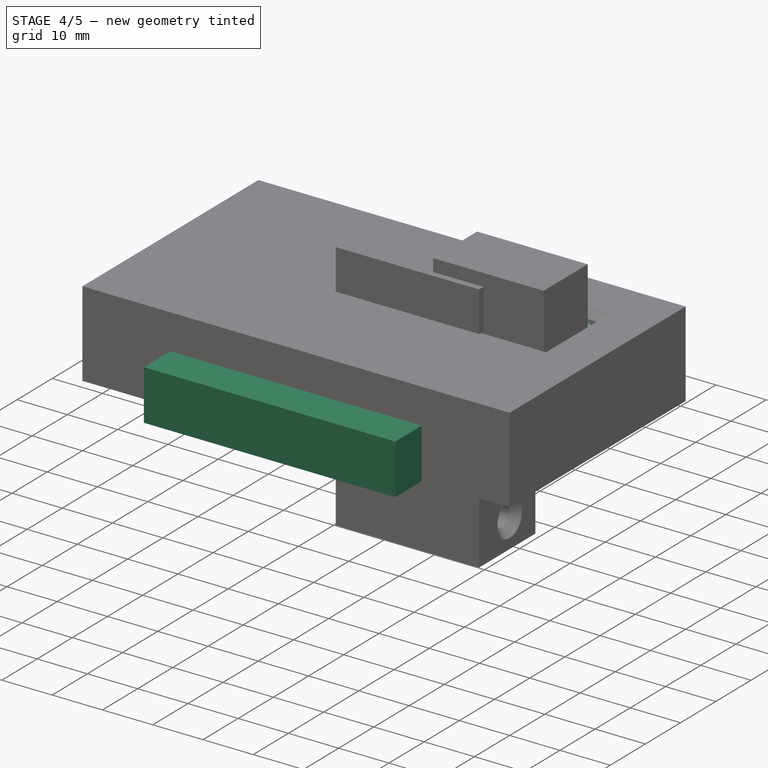
[diagram: stage 4 of 5 — iso view after this stage's code; geometry added in this stage tinted green]
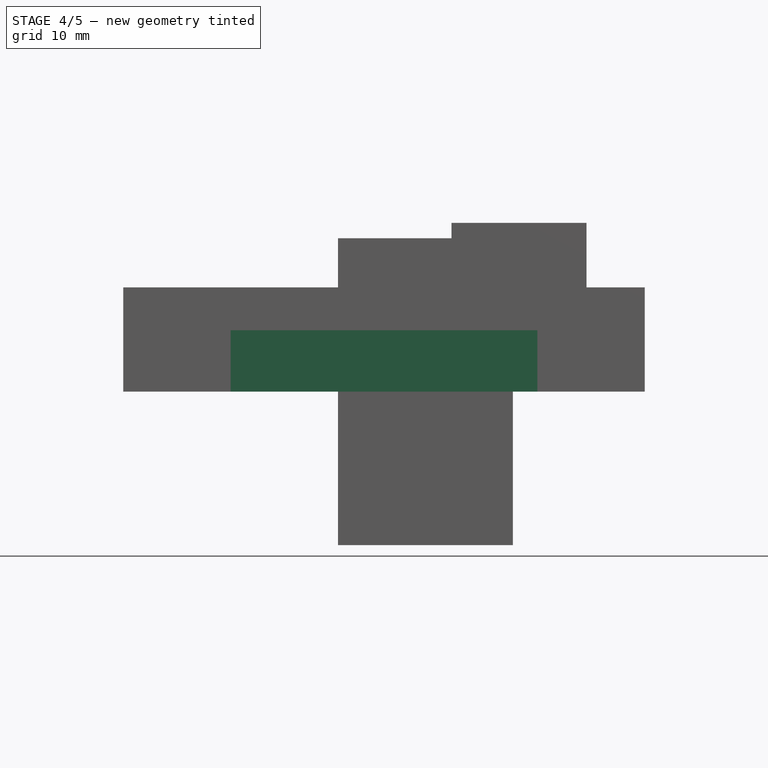
[diagram: stage 4 of 5 — front view after this stage's code; geometry added in this stage tinted green]
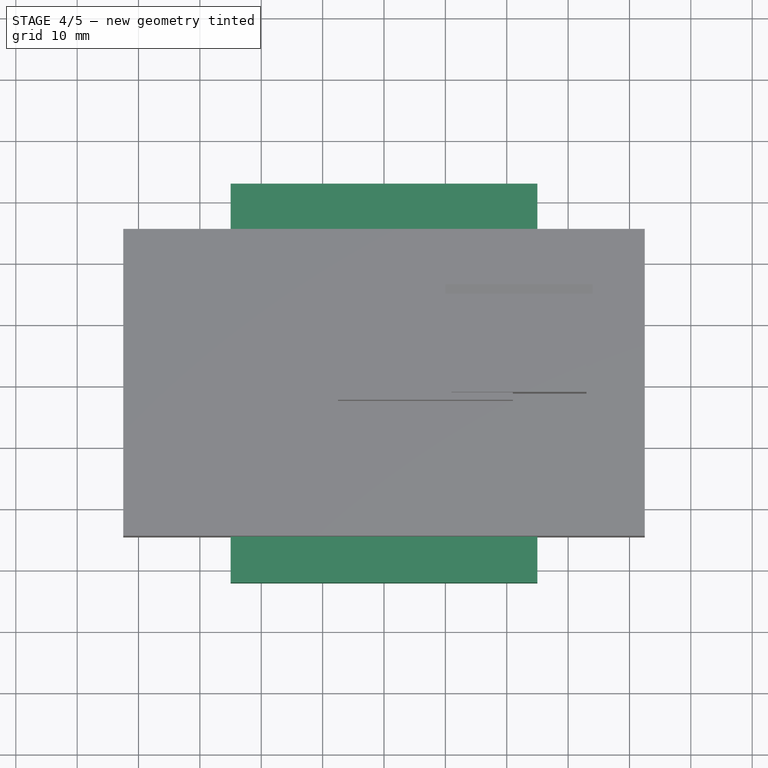
[diagram: stage 4 of 5 — top view after this stage's code; geometry added in this stage tinted green]
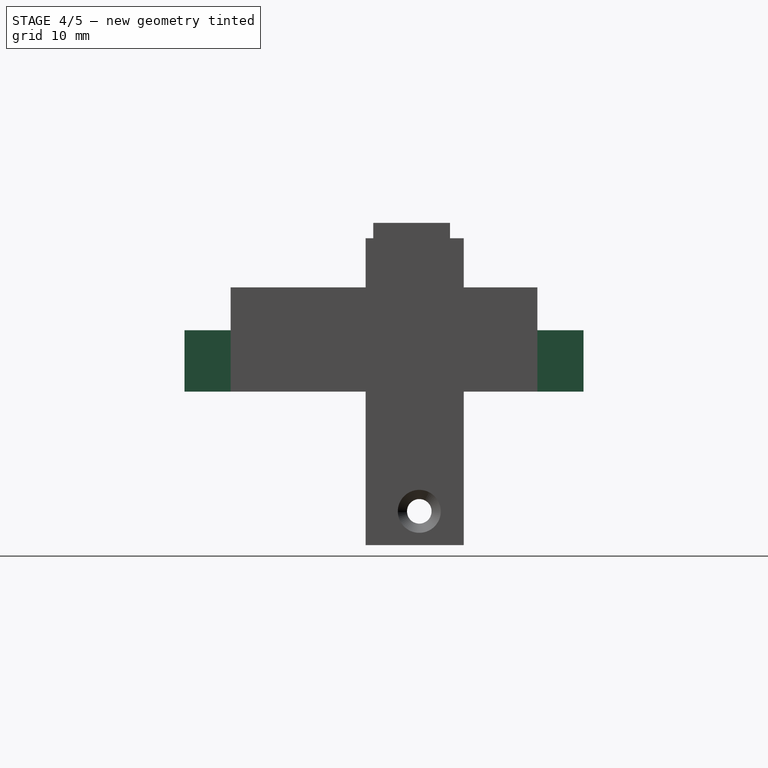
[diagram: stage 4 of 5 — right view after this stage's code; geometry added in this stage tinted green]
FEATURE [PartDesign::CoordinateSystem] LCS_002
  AttacherType = Attacher::AttachEngine3D
  MapMode = 2
  Support = -> [X_Axis003]
FEATURE [PartDesign::CoordinateSystem] Local_CS001  label="BottomLeft001"
  AttacherType = Attacher::AttachEngine3D
  MapMode = 1
  Placement = pos=(-40,-22.5,0) rot=(0,0,1;0rad)
  Support = -> [MultiTransform]
FEATURE [PartDesign::CoordinateSystem] Local_CS003  label="TopRight"
  AttacherType = Attacher::AttachEngine3D
  MapMode = 1
  Placement = pos=(40,22.5,0) rot=(0,0,1;0rad)
  Support = -> [MultiTransform]
FEATURE [Sketcher::SketchObject] Sketch007
  FullyConstrained = true
  MapMode = 5
  Support = -> [XY_Plane003]
  sketch-geometry (4):
    g0: LineSegment StartX=-42.5 StartY=25 StartZ=0 EndX=42.5 EndY=25 EndZ=0
    g1: LineSegment StartX=42.5 StartY=25 StartZ=0 EndX=42.5 EndY=-25 EndZ=0
    g2: LineSegment StartX=42.5 StartY=-25 StartZ=0 EndX=-42.5 EndY=-25 EndZ=0
    g3: LineSegment StartX=-42.5 StartY=-25 StartZ=0 EndX=-42.5 EndY=25 EndZ=0
  constraints (10):
    c: Horizontal(g0)
    c: Vertical(g1)
    c: Coincident(g2,g1)
    c: Coincident(g3,g2)
    c: Coincident(g0,g3)
    c: DistanceX(g2,g2) = 85
    c: DistanceY(g3,g3) = 50
    c: Symmetric(g1,g2,g-2)
    c: Symmetric(g0,g2,g-1)
    c: Coincident(g0,g1)
FEATURE [PartDesign::Pad] Pad006
  Direction = (0,0,1)
  Length = 6.5
  Length2 = 10
  Profile = -> Sketch007
  ReferenceAxis = -> Sketch007 [N_Axis]
  Type = 0
FEATURE [App::Link] Base001
  AssemblyType = Part::Link
  AttachedBy = #LCS_002
  AttachedTo = Parent Assembly#LCS_Origin
  LinkedObject = -> Base
  SolverId = Asm4EE
  expr: Placement = LCS_Origin.Placement * AttachmentOffset * LCS_002.Placement ^ -1
FEATURE [PartDesign::CoordinateSystem] Local_CS004  label="MainboardMount"
  AttacherType = Attacher::AttachEngine3D
  AttachmentOffset = pos=(0,0,4.5) rot=(0,0,1;0rad)
  MapMode = 5
  Placement = pos=(0,0,4.5) rot=(0,0,1;0rad)
  Support = -> [LCS_002]
FEATURE [App::Link] Mainboard001
  AssemblyType = Part::Link
  AttachedBy = #LCS_0
  AttachedTo = Base001#Local_CS004
  LinkPlacement = pos=(0,0,4.5) rot=(0,0,1;0rad)
  LinkedObject = -> Mainboard
  Placement = pos=(0,0,4.5) rot=(0,0,1;0rad)
  SolverId = Asm4EE
  expr: Placement = Base001.Placement * Local_CS004.Placement * AttachmentOffset * LCS_0.Placement ^ -1
FEATURE [Sketcher::SketchObject] Sketch008
  AttachmentOffset = pos=(0,0,2) rot=(0,0,1;0rad)
  FullyConstrained = true
  MapMode = 5
  Placement = pos=(0,0,2) rot=(0,0,1;0rad)
  Support = -> [XY_Plane003]
  sketch-geometry (4):
    g0: LineSegment StartX=-40.75 StartY=23.25 StartZ=0 EndX=40.75 EndY=23.25 EndZ=0
    g1: LineSegment StartX=40.75 StartY=23.25 StartZ=0 EndX=40.75 EndY=-23.25 EndZ=0
    g2: LineSegment StartX=40.75 StartY=-23.25 StartZ=0 EndX=-40.75 EndY=-23.25 EndZ=0
    g3: LineSegment StartX=-40.75 StartY=-23.25 StartZ=0 EndX=-40.75 EndY=23.25 EndZ=0
  constraints (10):
    c: Coincident(g0,g1)
    c: Coincident(g1,g2)
    c: Coincident(g2,g3)
    c: Coincident(g3,g0)
    c: Horizontal(g2)
    c: Vertical(g3)
    c: DistanceX(g0,g0) = 81.5
    c: DistanceY(g1,g1) = 46.5
    c: Symmetric(g0,g1,g-1)
    c: Symmetric(g0,g0,g-2)
FEATURE [PartDesign::Pocket] Pocket
  BaseFeature = -> Pad006
  Direction = (0,0,-1)
  Length = 5
  Length2 = 5
  Profile = -> Sketch008
  ReferenceAxis = -> Sketch008 [N_Axis]
  Reversed = true
  Type = 1
FEATURE [Sketcher::SketchObject] Sketch010
  FullyConstrained = true
  MapMode = 5
  Support = -> [XY_Plane003]
  sketch-geometry (4):
    g0: LineSegment StartX=-33.5 StartY=-16 StartZ=0 EndX=-42.5 EndY=-16 EndZ=0
    g1: LineSegment StartX=-42.5 StartY=-16 StartZ=0 EndX=-42.5 EndY=-25 EndZ=0
    g2: LineSegment StartX=-42.5 StartY=-25 StartZ=0 EndX=-33.5 EndY=-25 EndZ=0
    g3: LineSegment StartX=-33.5 StartY=-25 StartZ=0 EndX=-33.5 EndY=-16 EndZ=0
  constraints (12):
    c: Coincident(g0,g1)
    c: Coincident(g1,g2)
    c: Coincident(g2,g3)
    c: Coincident(g3,g0)
    c: Horizontal(g0)
    c: Horizontal(g2)
    c: Vertical(g1)
    c: Vertical(g3)
    c: DistanceX(g0,g-1) = 33.5
    c: DistanceY(g0,g-1) = 16
    c: DistanceX(g2,g2) = 9
    c: DistanceY(g1,g1) = 9
FEATURE [PartDesign::Pad] Pad007
  BaseFeature = -> Pocket
  Direction = (0,0,1)
  Length = 4.3
  Length2 = 10
  Profile = -> Sketch010
  ReferenceAxis = -> Sketch010 [N_Axis]
  Type = 0
FEATURE [PartDesign::Mirrored] Mirrored002
  MirrorPlane = -> Sketch010 [V_Axis]
FEATURE [PartDesign::Mirrored] Mirrored003
  MirrorPlane = -> Sketch010 [H_Axis]
FEATURE [PartDesign::MultiTransform] MultiTransform001
  BaseFeature = -> Pad007
  Originals = -> [Pad007]
  Transformations = -> [Mirrored002,Mirrored003]
FEATURE [PartDesign::SubtractiveCylinder] Cylinder001
  Angle = 360
  AttacherType = Attacher::AttachEngine3D
  AttachmentOffset = pos=(-37,-19.5,0) rot=(0,0,1;0rad)
  BaseFeature = -> MultiTransform001
  FirstAngle = 0
  Height = 10
  MapMode = 5
  Placement = pos=(-37,-19.5,0) rot=(0,0,1;0rad)
  Radius = 2
  SecondAngle = 0
  Support = -> [XY_Plane003]
  expr: Radius = 2
FEATURE [PartDesign::Mirrored] Mirrored004
  MirrorPlane = -> YZ_Plane003
  Placement = pos=(-37,-19.5,0) rot=(0,0,1;0rad)
FEATURE [PartDesign::Mirrored] Mirrored005
  MirrorPlane = -> XZ_Plane003
  Placement = pos=(-37,-19.5,0) rot=(0,0,1;0rad)
FEATURE [PartDesign::MultiTransform] MultiTransform002
  BaseFeature = -> Cylinder001
  Originals = -> [Cylinder001]
  Placement = pos=(-37,-19.5,0) rot=(0,0,1;0rad)
  Transformations = -> [Mirrored004,Mirrored005]
FEATURE [PartDesign::Mirrored] Mirrored009
  MirrorPlane = -> YZ_Plane004
  Placement = pos=(-37,19.5,0) rot=(0,0,1;0rad)
FEATURE [PartDesign::Mirrored] Mirrored010
  MirrorPlane = -> XZ_Plane004
  Placement = pos=(-37,19.5,0) rot=(0,0,1;0rad)
FEATURE [Sketcher::SketchObject] Sketch017
  AttachmentOffset = pos=(0,0,6.5) rot=(0,0,1;0rad)
  FullyConstrained = false
  MapMode = 5
  Placement = pos=(0,0,6.5) rot=(0,0,1;0rad)
  Support = -> [XY_Plane003]
  sketch-geometry (4):
    g0: LineSegment StartX=-43.7107 StartY=16 StartZ=0 EndX=-39.4081 EndY=16 EndZ=0
    g1: LineSegment StartX=-39.4081 StartY=16 StartZ=0 EndX=-39.4081 EndY=-16 EndZ=0
    g2: LineSegment StartX=-39.4081 StartY=-16 StartZ=0 EndX=-43.7107 EndY=-16 EndZ=0
    g3: LineSegment StartX=-43.7107 StartY=-16 StartZ=0 EndX=-43.7107 EndY=16 EndZ=0
  constraints (9):
    c: Coincident(g0,g1)
    c: Coincident(g1,g2)
    c: Coincident(g2,g3)
    c: Coincident(g3,g0)
    c: Horizontal(g0)
    c: Horizontal(g2)
    c: Vertical(g1)
    c: DistanceY(g3,g3) = 32
    c: Symmetric(g0,g2,g-1)
FEATURE [PartDesign::Pocket] Pocket006
  BaseFeature = -> MultiTransform002
  Direction = (0,0,-1)
  Length = 5
  Length2 = 5
  Placement = pos=(-37,-19.5,0) rot=(0,0,1;0rad)
  Profile = -> Sketch017
  ReferenceAxis = -> Sketch017 [N_Axis]
  Reversed = true
  Type = 0
FEATURE [PartDesign::CoordinateSystem] LCS_005
  AttacherType = Attacher::AttachEngine3D
  MapMode = 2
  Support = -> [X_Axis006]
FEATURE [Sketcher::SketchObject] Sketch025
  FullyConstrained = true
  MapMode = 5
  Support = -> [XY_Plane006]
  sketch-geometry (4):
    g0: LineSegment StartX=-25 StartY=32.5 StartZ=0 EndX=25 EndY=32.5 EndZ=0
    g1: LineSegment StartX=25 StartY=32.5 StartZ=0 EndX=25 EndY=-32.5 EndZ=0
    g2: LineSegment StartX=25 StartY=-32.5 StartZ=0 EndX=-25 EndY=-32.5 EndZ=0
    g3: LineSegment StartX=-25 StartY=-32.5 StartZ=0 EndX=-25 EndY=32.5 EndZ=0
  constraints (10):
    c: Coincident(g0,g1)
    c: Coincident(g1,g2)
    c: Coincident(g2,g3)
    c: Coincident(g3,g0)
    c: Horizontal(g0)
    c: Vertical(g1)
    c: DistanceX(g0,g0) = 50
    c: DistanceY(g3,g3) = 65
    c: Symmetric(g2,g1,g-2)
    c: Symmetric(g0,g2,g-1)
FEATURE [PartDesign::Pad] Pad015
  Direction = (0,0,1)
  Length = 10
  Length2 = 10
  Profile = -> Sketch025
  ReferenceAxis = -> Sketch025 [N_Axis]
  Type = 0
FEATURE [Sketcher::SketchObject] Sketch026
  FullyConstrained = true
  MapMode = 5
  Support = -> [XY_Plane006]
  sketch-geometry (4):
    g0: LineSegment StartX=-22.5 StartY=15 StartZ=0 EndX=22.5 EndY=15 EndZ=0
    g1: LineSegment StartX=22.5 StartY=15 StartZ=0 EndX=22.5 EndY=-15 EndZ=0
    g2: LineSegment StartX=22.5 StartY=-15 StartZ=0 EndX=-22.5 EndY=-15 EndZ=0
    g3: LineSegment StartX=-22.5 StartY=-15 StartZ=0 EndX=-22.5 EndY=15 EndZ=0
  constraints (10):
    c: Coincident(g0,g1)
    c: Coincident(g1,g2)
    c: Coincident(g2,g3)
    c: Coincident(g3,g0)
    c: Horizontal(g0)
    c: Vertical(g1)
    c: DistanceX(g0,g0) = 45
    c: DistanceY(g3,g3) = 30
    c: Symmetric(g2,g0,g-1)
    c: Symmetric(g1,g2,g-2)
FEATURE [PartDesign::Pocket] Pocket008
  BaseFeature = -> Pad015
  Direction = (0,0,-1)
  Length = 5
  Length2 = 5
  Profile = -> Sketch026
  ReferenceAxis = -> Sketch026 [N_Axis]
  Reversed = true
  Type = 1
FEATURE [PartDesign::Body] SSR_Cover
  Group = -> [LCS_005,Sketch025,Pad015,Sketch026,Pocket008,Sketch027,Pocket009,Sketch028,Pocket010,Chamfer002,Fillet,Cylinder004,Cylinder005,Mirrored012]
  Origin = -> Origin006
  Tip = -> Mirrored012
FEATURE [PartDesign::Chamfer] Chamfer
  Angle = 45
  Base = -> Pocket006 [Edge62,Edge8]
  BaseFeature = -> Pocket006
  ChamferType = 0
  FlipDirection = false
  Placement = pos=(-37,-19.5,0) rot=(0,0,1;0rad)
  Size = 1.5
  Size2 = 1
  SupportTransform = false
  UseAllEdges = false
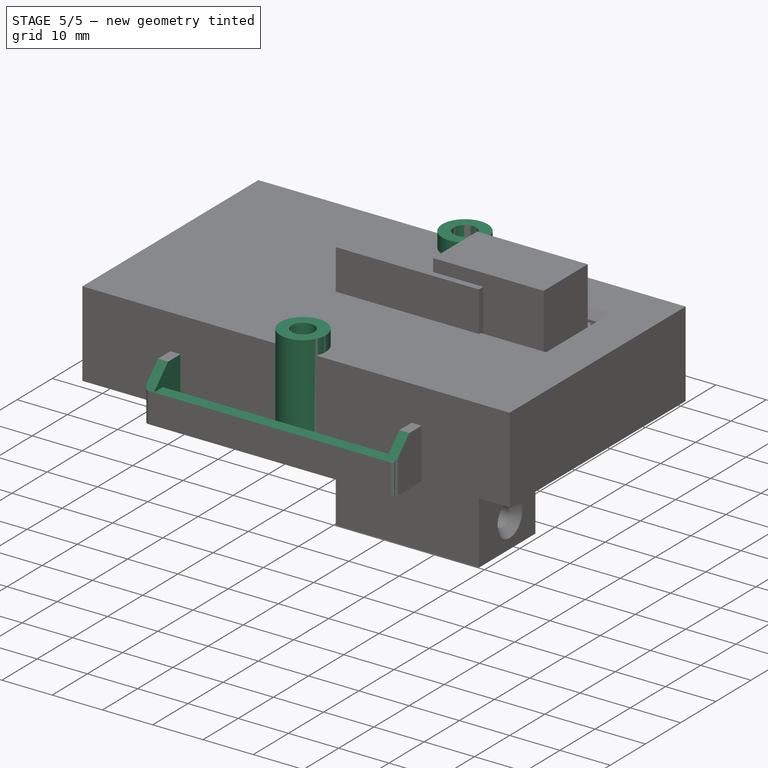
[diagram: stage 5 of 5 — iso view after this stage's code; geometry added in this stage tinted green]
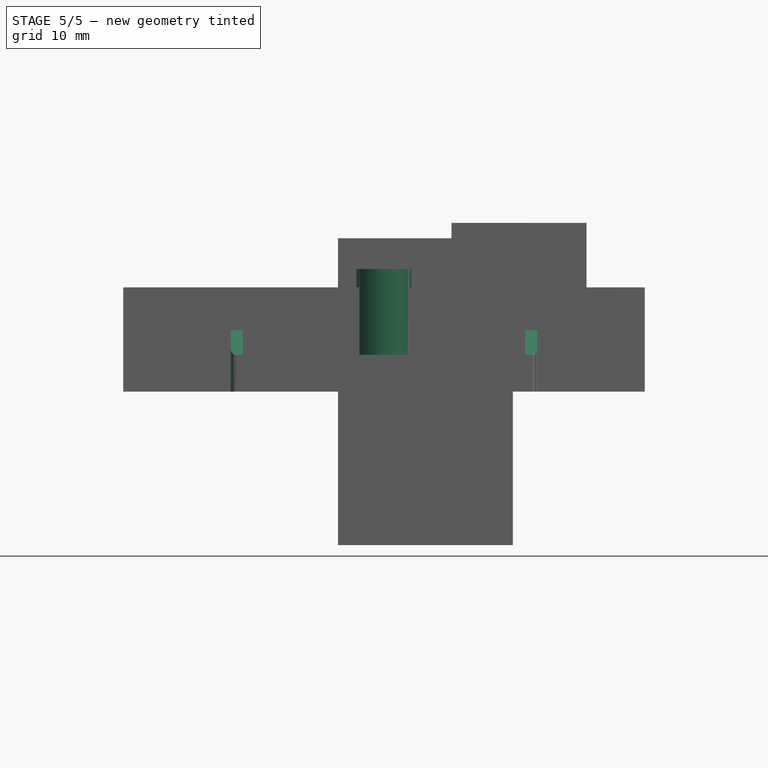
[diagram: stage 5 of 5 — front view after this stage's code; geometry added in this stage tinted green]
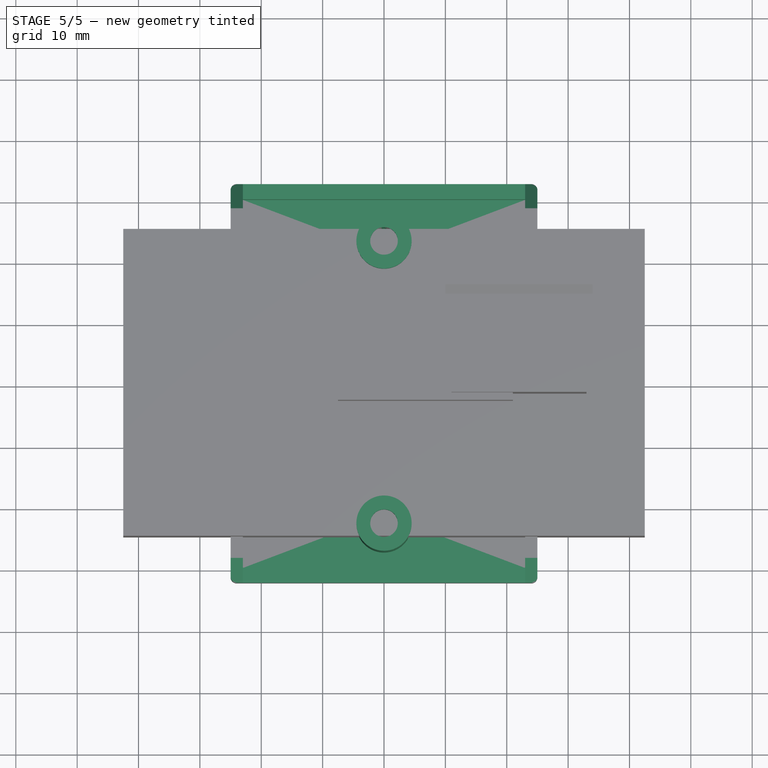
[diagram: stage 5 of 5 — top view after this stage's code; geometry added in this stage tinted green]
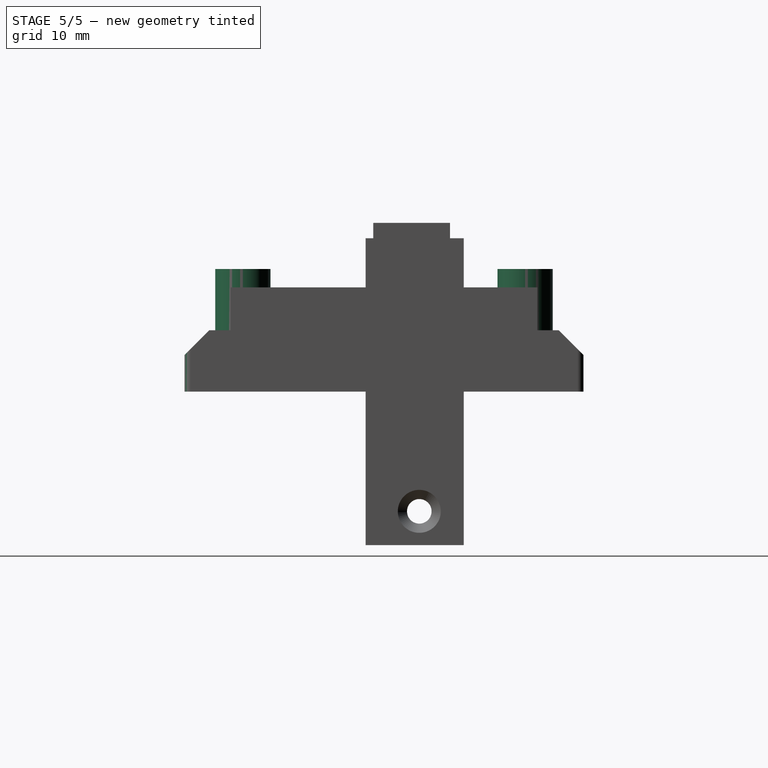
[diagram: stage 5 of 5 — right view after this stage's code; geometry added in this stage tinted green]
FEATURE [Part::FeaturePython] ThreadedRod  label="M10x15-ThreadedRod"  # Fasteners workbench fastener (typed FeaturePython)
  Placement = pos=(0,0,10) rot=(-1,0,0;1.5708rad)
  diameter = 10
  diameterCustom = 8
  invert = false
  leftHanded = false
  length = 15
  matchOuter = false
  offset = 0
  pitchCustom = 1
  thread = true
  type = 4
FEATURE [Part::FeaturePython] Nut  label="M10-Nut"  # Fasteners workbench fastener (typed FeaturePython)
  diameter = 10
  invert = false
  leftHanded = false
  matchOuter = false
  offset = 0
  thread = true
  type = 24
FEATURE [Sketcher::SketchObject] Sketch027
  AttachmentOffset = pos=(0,0,2) rot=(0,0,1;0rad)
  FullyConstrained = true
  MapMode = 5
  Placement = pos=(0,0,2) rot=(0,0,1;0rad)
  Support = -> [XY_Plane006]
  sketch-geometry (4):
    g0: LineSegment StartX=-23 StartY=30 StartZ=0 EndX=23 EndY=30 EndZ=0
    g1: LineSegment StartX=23 StartY=30 StartZ=0 EndX=23 EndY=-30 EndZ=0
    g2: LineSegment StartX=23 StartY=-30 StartZ=0 EndX=-23 EndY=-30 EndZ=0
    g3: LineSegment StartX=-23 StartY=-30 StartZ=0 EndX=-23 EndY=30 EndZ=0
  constraints (10):
    c: Coincident(g0,g1)
    c: Coincident(g1,g2)
    c: Coincident(g2,g3)
    c: Coincident(g3,g0)
    c: Horizontal(g2)
    c: Vertical(g1)
    c: DistanceX(g0,g0) = 46
    c: DistanceY(g3,g3) = 60
    c: Symmetric(g0,g2,g-1)
    c: Symmetric(g0,g0,g-2)
FEATURE [PartDesign::Pocket] Pocket009
  BaseFeature = -> Pocket008
  Direction = (0,0,-1)
  Length = 5
  Length2 = 5
  Profile = -> Sketch027
  ReferenceAxis = -> Sketch027 [N_Axis]
  Reversed = true
  Type = 1
FEATURE [Sketcher::SketchObject] Sketch028
  AttachmentOffset = pos=(0,0,6) rot=(0,0,1;0rad)
  FullyConstrained = true
  MapMode = 5
  Placement = pos=(0,0,6) rot=(0,0,1;0rad)
  Support = -> [XY_Plane006]
  sketch-geometry (4):
    g0: LineSegment StartX=-23 StartY=50 StartZ=0 EndX=23 EndY=50 EndZ=0
    g1: LineSegment StartX=23 StartY=50 StartZ=0 EndX=23 EndY=-50 EndZ=0
    g2: LineSegment StartX=23 StartY=-50 StartZ=0 EndX=-23 EndY=-50 EndZ=0
    g3: LineSegment StartX=-23 StartY=-50 StartZ=0 EndX=-23 EndY=50 EndZ=0
  constraints (10):
    c: Coincident(g0,g1)
    c: Coincident(g1,g2)
    c: Coincident(g2,g3)
    c: Coincident(g3,g0)
    c: Horizontal(g2)
    c: Vertical(g1)
    c: DistanceX(g0,g0) = 46
    c: DistanceY(g3,g3) = 100
    c: Symmetric(g0,g2,g-1)
    c: Symmetric(g0,g0,g-2)
FEATURE [PartDesign::Pocket] Pocket010
  BaseFeature = -> Pocket009
  Direction = (0,0,-1)
  Length = 5
  Length2 = 5
  Profile = -> Sketch028
  ReferenceAxis = -> Sketch028 [N_Axis]
  Reversed = true
  Type = 0
FEATURE [PartDesign::Chamfer] Chamfer002
  Angle = 45
  Base = -> Pocket010 [Edge30,Edge18,Edge3,Edge7]
  BaseFeature = -> Pocket010
  ChamferType = 0
  FlipDirection = false
  Size = 4
  Size2 = 1
  SupportTransform = false
  UseAllEdges = false
FEATURE [PartDesign::Fillet] Fillet
  Base = -> Chamfer002 [Edge1,Edge10,Edge5,Edge24]
  BaseFeature = -> Chamfer002
  Radius = 1
  SupportTransform = false
  UseAllEdges = false
FEATURE [PartDesign::AdditiveCylinder] Cylinder004
  Angle = 360
  AttacherType = Attacher::AttachEngine3D
  AttachmentOffset = pos=(0,23,0) rot=(0,0,1;0rad)
  BaseFeature = -> Fillet
  FirstAngle = 0
  Height = 20
  MapMode = 5
  Placement = pos=(0,23,0) rot=(0,0,1;0rad)
  Radius = 4.5
  SecondAngle = 0
  Support = -> [XY_Plane006]
FEATURE [PartDesign::SubtractiveCylinder] Cylinder005
  Angle = 360
  AttacherType = Attacher::AttachEngine3D
  AttachmentOffset = pos=(0,23,4) rot=(0,0,1;0rad)
  BaseFeature = -> Cylinder004
  FirstAngle = 0
  Height = 20
  MapMode = 5
  Placement = pos=(0,23,4) rot=(0,0,1;0rad)
  Radius = 2.25
  SecondAngle = 0
  Support = -> [XY_Plane006]
  expr: Radius = 4.5 / 2
FEATURE [PartDesign::Mirrored] Mirrored012
  BaseFeature = -> Cylinder005
  MirrorPlane = -> XZ_Plane006
  Originals = -> [Cylinder004,Cylinder005]
  Placement = pos=(0,23,4) rot=(0,0,1;0rad)
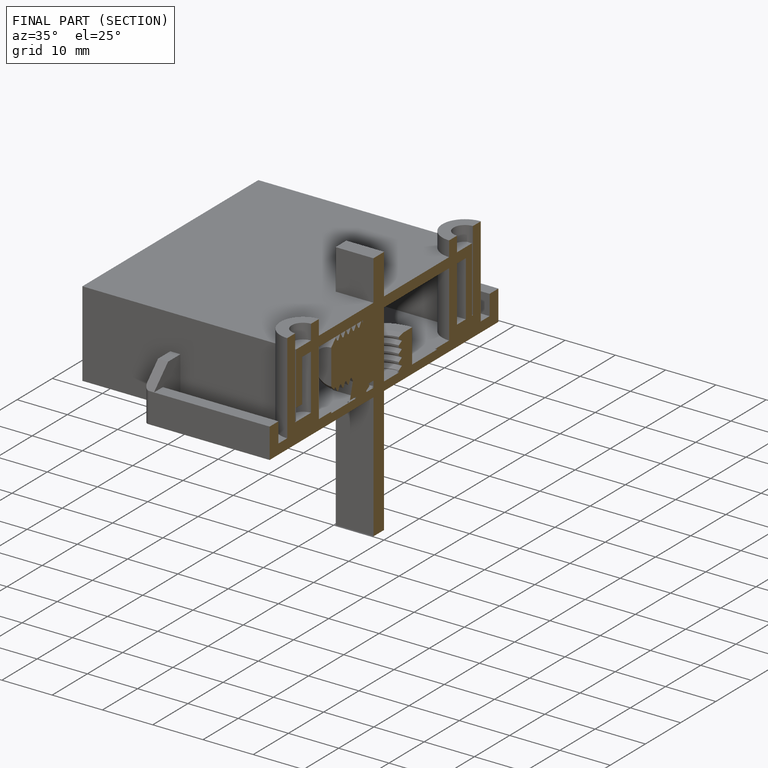
[diagram: finished part — half-section view (interior)]
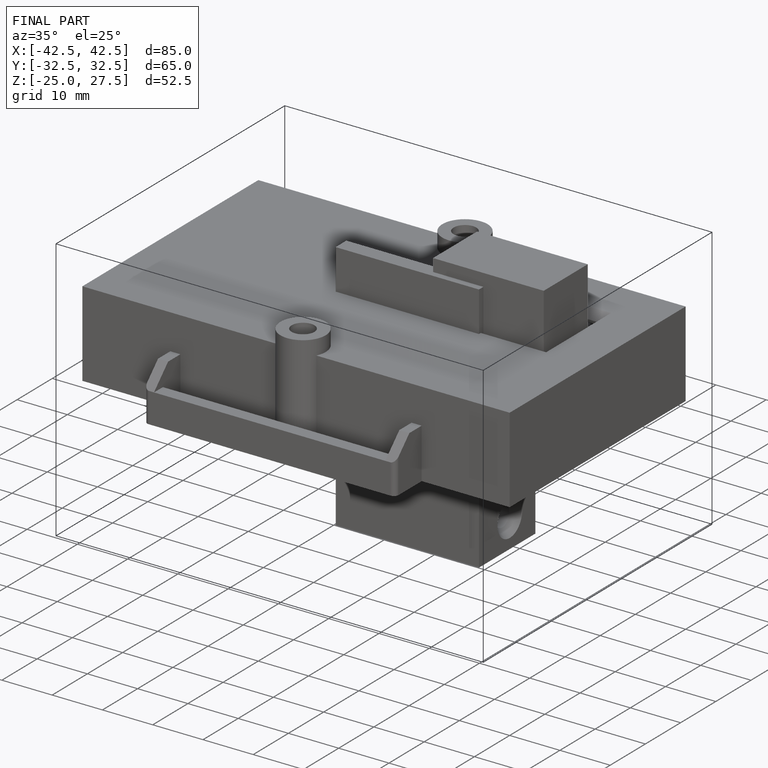
[diagram: finished part — iso view with bounding-box wireframe]
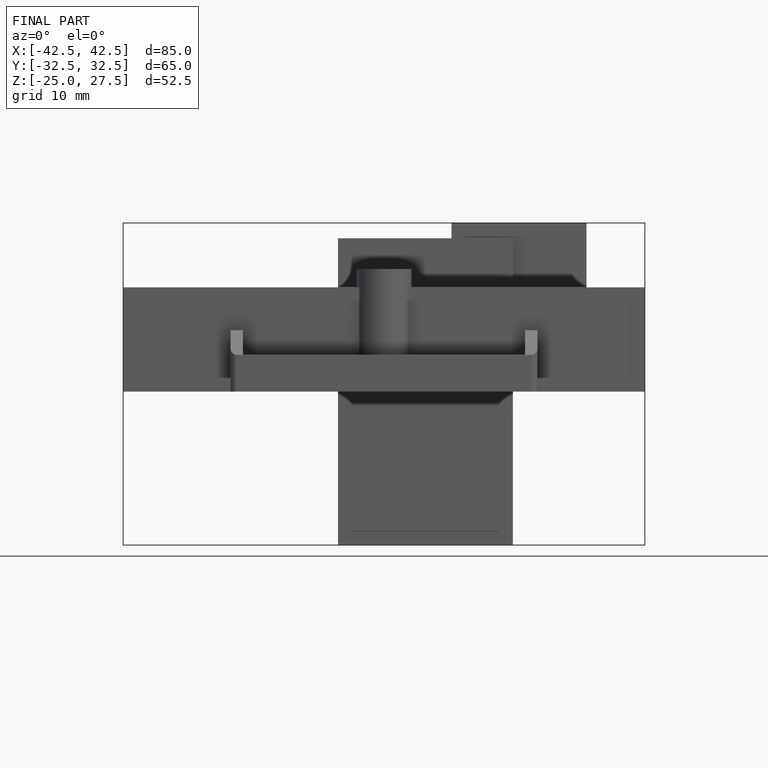
[diagram: finished part — front view with bounding-box wireframe]
